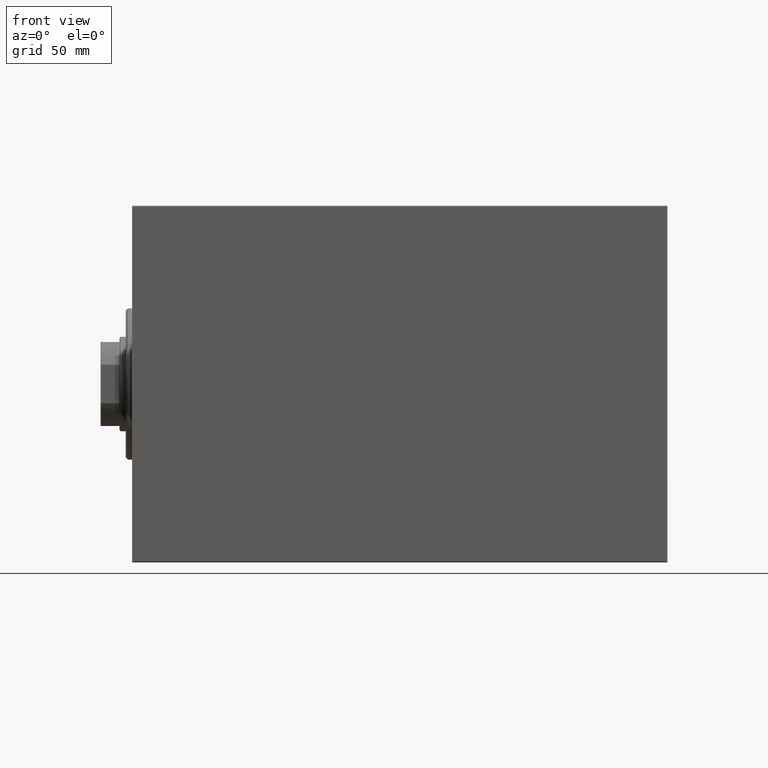
[diagram: clean part render]
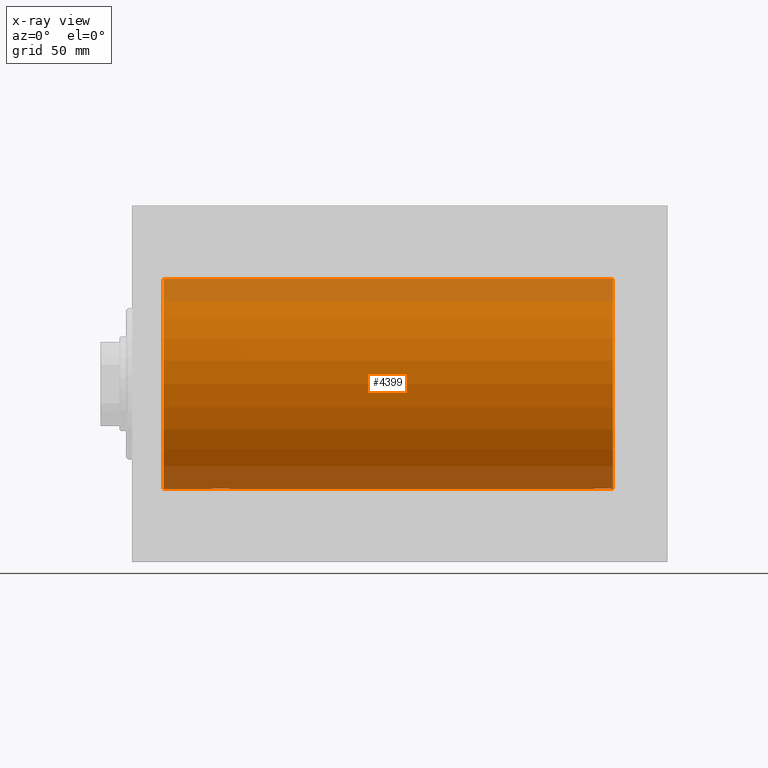
[diagram: x-ray — body ghosted, one internal face saturated and labeled with its STEP entity id]
A machine part, front view, then the same camera in x-ray: the body is ghosted and one INTERNAL B-rep face — a face not visible from any outside direction — is saturated and labeled: STEP entity #4399.
In plain terms, the highlighted cylindrical surface (partial cylindrical patch) has radius 50 mm, axis along (-1, -0, -0).
Its self-contained STEP definition (entity closure, byte-faithful):
#572 = CARTESIAN_POINT ( 'NONE',  ( 44.81153066515419425, -3.199146701881665500, -49.89793607725460589 ) ) ;
#837 = CARTESIAN_POINT ( 'NONE',  ( 221.1930216816069503, -3.203153387937343499, -49.89767833571684008 ) ) ;
#1022 = CARTESIAN_POINT ( 'NONE',  ( 42.28395287026698668, -4.249777379711400016, -49.81906655360198499 ) ) ;
#1059 = CARTESIAN_POINT ( 'NONE',  ( 219.7775736447922270, -0.5587117664567382569, -49.99763378604802710 ) ) ;
#1094 = CARTESIAN_POINT ( 'NONE',  ( 46.25000000000000000, 6.123233970928580774E-15, -50.00000000000000000 ) ) ;
#1530 = VERTEX_POINT ( 'NONE', #33947 ) ;
#1691 = CARTESIAN_POINT ( 'NONE',  ( 38.80078072038718062, -2.811461347331114524, -49.92127983148851200 ) ) ;
#1698 = VERTEX_POINT ( 'NONE', #42709 ) ;
#1971 = CARTESIAN_POINT ( 'NONE',  ( 229.0000000000000000, 0.000000000000000000, 0.000000000000000000 ) ) ;
#2019 = EDGE_CURVE ( 'NONE', #12486, #1530, #31234, .T. ) ;
#2134 = CARTESIAN_POINT ( 'NONE',  ( 38.31397167878049714, -2.133925816755183114, -49.95498245321555686 ) ) ;
#2356 = DIRECTION ( 'NONE',  ( 0.000000000000000000, 0.000000000000000000, 1.000000000000000000 ) ) ;
#2363 = CARTESIAN_POINT ( 'NONE',  ( 39.19302168160691480, -3.203153387937326624, -49.89767833571684008 ) ) ;
#2792 = CARTESIAN_POINT ( 'NONE',  ( 14.99999999999998579, 0.000000000000000000, 0.000000000000000000 ) ) ;
#2974 = EDGE_CURVE ( 'NONE', #19124, #23230, #13324, .T. ) ;
#3959 = CARTESIAN_POINT ( 'NONE',  ( 45.68937155679385143, -2.128188802142360281, -49.95522967821973737 ) ) ;
#4172 = CARTESIAN_POINT ( 'NONE',  ( 43.37333436579037738, -4.031616700143179521, -49.83731072121799599 ) ) ;
#4209 = CARTESIAN_POINT ( 'NONE',  ( 227.6893715567939580, -2.128188802142370495, -49.95522967821975158 ) ) ;
#4399 = ADVANCED_FACE ( 'NONE', ( #11256 ), #11707, .F. ) ;
#4439 = CARTESIAN_POINT ( 'NONE',  ( 220.6248001591803813, -2.597781786597489706, -49.93300953359122474 ) ) ;
#5270 = CARTESIAN_POINT ( 'NONE',  ( 226.5931272088596415, -3.378657745070642981, -49.88595615988430154 ) ) ;
#5491 = CARTESIAN_POINT ( 'NONE',  ( 228.2500000000000568, -0.2773743941468493901, -50.00000000000000711 ) ) ;
#5708 = CARTESIAN_POINT ( 'NONE',  ( 220.8007807203871948, -2.811461347331129179, -49.92127983148851200 ) ) ;
#6190 = AXIS2_PLACEMENT_3D ( 'NONE', #38910, #35981, #35750 ) ;
#6774 = EDGE_LOOP ( 'NONE', ( #29867, #35064, #21231, #27701, #15414, #34446, #32383, #39140 ) ) ;
#7240 = LINE ( 'NONE', #20722, #30974 ) ;
#7325 = CARTESIAN_POINT ( 'NONE',  ( 45.82100581985226029, -1.881229021238118859, -49.96525240872481533 ) ) ;
#7360 = EDGE_CURVE ( 'NONE', #40186, #1698, #12452, .T. ) ;
#7546 = CARTESIAN_POINT ( 'NONE',  ( 44.59312720885954917, -3.378657745070622997, -49.88595615988429444 ) ) ;
#7770 = CARTESIAN_POINT ( 'NONE',  ( 44.13136399446154456, -3.687400765141527259, -49.86408552998295818 ) ) ;
#8041 = CARTESIAN_POINT ( 'NONE',  ( 224.2839528702670293, -4.249777379711429326, -49.81906655360197789 ) ) ;
#8599 = CARTESIAN_POINT ( 'NONE',  ( 37.75000000000000711, -6.867186738287116403E-15, -50.00000000000000000 ) ) ;
#9070 = CARTESIAN_POINT ( 'NONE',  ( 228.2231075279900381, -0.5531336717329033981, -49.99769193709643389 ) ) ;
#9315 = CARTESIAN_POINT ( 'NONE',  ( 40.11782950515556934, -3.820681512513380618, -49.85392475515399724 ) ) ;
#10685 = CARTESIAN_POINT ( 'NONE',  ( 46.22310752799000255, -0.5531336717328981800, -49.99769193709643389 ) ) ;
#11256 = FACE_OUTER_BOUND ( 'NONE', #6774, .T. ) ;
#11580 = DIRECTION ( 'NONE',  ( -1.000000000000000000, -0.000000000000000000, -0.000000000000000000 ) ) ;
#11707 = CYLINDRICAL_SURFACE ( 'NONE', #6190, 50.00000000000000000 ) ;
#12215 = CARTESIAN_POINT ( 'NONE',  ( 219.7500000000000284, -2.307503314381865081E-14, -50.00000000000000000 ) ) ;
#12435 = VERTEX_POINT ( 'NONE', #1094 ) ;
#12452 = B_SPLINE_CURVE_WITH_KNOTS ( 'NONE', 3,
 ( #32661, #5491, #9070, #22570, #38583, #25106, #4209, #38818, #43023, #43255, #5270, #21515, #25929, #36278, #19178, #22785, #8041, #35442, #19405, #21748, #32880, #36489, #18957, #14765, #837, #5708, #4439, #35214, #15583, #33106, #12659, #1059, #28472, #12215 ),
 .UNSPECIFIED., .F., .F.,
 ( 4, 2, 2, 2, 2, 2, 2, 2, 2, 2, 2, 2, 2, 2, 2, 2, 4 ),
 ( 0.01329343152928757002, 0.01412407817529635727, 0.01495472482130514279, 0.01578537146731393004, 0.01661601811332271555, 0.01744666475933150107, 0.01827731140534029006, 0.01910795805134907557, 0.01993860469735786456, 0.02076925134336665008, 0.02159989798937543559, 0.02243054463538422111, 0.02326119128139301009, 0.02409183792740179561, 0.02492248457341058460, 0.02575313121941937011, 0.02658377786542815563 ),
 .UNSPECIFIED. ) ;
#12464 = CARTESIAN_POINT ( 'NONE',  ( 38.18160751012128884, -1.886522330773421574, -49.96505190380066352 ) ) ;
#12486 = VERTEX_POINT ( 'NONE', #35696 ) ;
#12659 = CARTESIAN_POINT ( 'NONE',  ( 219.8875029891967188, -1.108337267831515982, -49.98846998601261760 ) ) ;
#13324 = CIRCLE ( 'NONE', #21226, 50.00000000000000000 ) ;
#13492 = LINE ( 'NONE', #30361, #20287 ) ;
#14278 = LINE ( 'NONE', #17866, #44397 ) ;
#14726 = CARTESIAN_POINT ( 'NONE',  ( 41.72275072962081310, -4.250219976861640880, -49.81902879621016211 ) ) ;
#14765 = CARTESIAN_POINT ( 'NONE',  ( 221.4117978532380562, -3.382416624899818647, -49.88570010427955737 ) ) ;
#15414 = ORIENTED_EDGE ( 'NONE', *, *, #40116, .T. ) ;
#15583 = CARTESIAN_POINT ( 'NONE',  ( 220.1816075101212959, -1.886522330773437339, -49.96505190380065642 ) ) ;
#15607 = CARTESIAN_POINT ( 'NONE',  ( 40.90262382120963736, -4.115209769591108291, -49.83039196709104601 ) ) ;
#15833 = CARTESIAN_POINT ( 'NONE',  ( 40.63289352445426772, -4.033756670430847180, -49.83713703490975888 ) ) ;
#16053 = CARTESIAN_POINT ( 'NONE',  ( 38.62480015918033871, -2.597781786597466613, -49.93300953359121763 ) ) ;
#16414 = DIRECTION ( 'NONE',  ( -1.000000000000000000, -0.000000000000000000, -0.000000000000000000 ) ) ;
#16894 = DIRECTION ( 'NONE',  ( -1.000000000000000000, -0.000000000000000000, -0.000000000000000000 ) ) ;
#17187 = VERTEX_POINT ( 'NONE', #8599 ) ;
#17865 = CARTESIAN_POINT ( 'NONE',  ( 43.88744739392798522, -3.818052230167713113, -49.85412671291930309 ) ) ;
#17866 = CARTESIAN_POINT ( 'NONE',  ( 229.0000000000000000, 0.000000000000000000, 50.00000000000000000 ) ) ;
#18098 = CARTESIAN_POINT ( 'NONE',  ( 42.55997867695647585, -4.222042462213118519, -49.82145436824654894 ) ) ;
#18595 = DIRECTION ( 'NONE',  ( -1.000000000000000000, 0.000000000000000000, 0.000000000000000000 ) ) ;
#18957 = CARTESIAN_POINT ( 'NONE',  ( 221.8736835512492576, -3.690299572754756952, -49.86386974736159061 ) ) ;
#19124 = VERTEX_POINT ( 'NONE', #24157 ) ;
#19178 = CARTESIAN_POINT ( 'NONE',  ( 225.1032329603422113, -4.113647494206503552, -49.83052139214891696 ) ) ;
#19405 = CARTESIAN_POINT ( 'NONE',  ( 223.4459143511985246, -4.222816005855230870, -49.82138837911247009 ) ) ;
#19421 = DIRECTION ( 'NONE',  ( -1.000000000000000000, 0.000000000000000000, 0.000000000000000000 ) ) ;
#19431 = CARTESIAN_POINT ( 'NONE',  ( 37.96920203844657493, -1.375411031076047230, -49.98173289062308555 ) ) ;
#20287 = VECTOR ( 'NONE', #16414, 1000.000000000000000 ) ;
#20542 = EDGE_CURVE ( 'NONE', #1698, #12435, #43636, .T. ) ;
#20722 = CARTESIAN_POINT ( 'NONE',  ( 229.0000000000000000, 6.123233995736764507E-15, -50.00000000000000000 ) ) ;
#21226 = AXIS2_PLACEMENT_3D ( 'NONE', #1971, #18595, #35235 ) ;
#21231 = ORIENTED_EDGE ( 'NONE', *, *, #7360, .T. ) ;
#21475 = CARTESIAN_POINT ( 'NONE',  ( 43.10323296034216156, -4.113647494206477795, -49.83052139214893117 ) ) ;
#21515 = CARTESIAN_POINT ( 'NONE',  ( 226.1313639944615659, -3.687400765141549019, -49.86408552998298660 ) ) ;
#21748 = CARTESIAN_POINT ( 'NONE',  ( 222.9026238212096587, -4.115209769591131383, -49.83039196709102470 ) ) ;
#22369 = CARTESIAN_POINT ( 'NONE',  ( 37.77757364479218438, -0.5587117664567184949, -49.99763378604801289 ) ) ;
#22570 = CARTESIAN_POINT ( 'NONE',  ( 228.1143191330600359, -1.101350136471743069, -49.98862054280448319 ) ) ;
#22733 = DIRECTION ( 'NONE',  ( -1.000000000000000000, -0.000000000000000000, -0.000000000000000000 ) ) ;
#22785 = CARTESIAN_POINT ( 'NONE',  ( 224.5599786769565469, -4.222042462213146941, -49.82145436824653473 ) ) ;
#22985 = EDGE_CURVE ( 'NONE', #17187, #12486, #7240, .T. ) ;
#23230 = VERTEX_POINT ( 'NONE', #43196 ) ;
#24157 = CARTESIAN_POINT ( 'NONE',  ( 229.0000000000000000, 6.123233995736764507E-15, -50.00000000000000000 ) ) ;
#24408 = CARTESIAN_POINT ( 'NONE',  ( 46.03272642097309841, -1.369753890039645761, -49.98188917176552337 ) ) ;
#24844 = CARTESIAN_POINT ( 'NONE',  ( 45.37881717263736192, -2.593114840406123722, -49.93325460257639037 ) ) ;
#25106 = CARTESIAN_POINT ( 'NONE',  ( 227.8210058198523598, -1.881229021238126409, -49.96525240872482954 ) ) ;
#25174 = VECTOR ( 'NONE', #22733, 1000.000000000000000 ) ;
#25929 = CARTESIAN_POINT ( 'NONE',  ( 225.8874473939280563, -3.818052230167736205, -49.85412671291930309 ) ) ;
#26276 = EDGE_CURVE ( 'NONE', #19124, #40186, #13492, .T. ) ;
#26394 = CARTESIAN_POINT ( 'NONE',  ( 37.75000000000000711, -6.867186738287116403E-15, -50.00000000000000000 ) ) ;
#27701 = ORIENTED_EDGE ( 'NONE', *, *, #20542, .T. ) ;
#28434 = CARTESIAN_POINT ( 'NONE',  ( 41.44591435119853173, -4.222816005855205113, -49.82138837911246299 ) ) ;
#28472 = CARTESIAN_POINT ( 'NONE',  ( 219.7500000000000853, -0.2808785465865917264, -50.00000000000001421 ) ) ;
#29699 = CARTESIAN_POINT ( 'NONE',  ( 229.0000000000000000, 6.123233995736764507E-15, -50.00000000000000000 ) ) ;
#29769 = CARTESIAN_POINT ( 'NONE',  ( 39.41179785323800644, -3.382416624899780899, -49.88570010427955737 ) ) ;
#29867 = ORIENTED_EDGE ( 'NONE', *, *, #2974, .F. ) ;
#30361 = CARTESIAN_POINT ( 'NONE',  ( 229.0000000000000000, 6.123233995736764507E-15, -50.00000000000000000 ) ) ;
#30974 = VECTOR ( 'NONE', #16894, 1000.000000000000000 ) ;
#31234 = CIRCLE ( 'NONE', #34115, 50.00000000000000000 ) ;
#31360 = CARTESIAN_POINT ( 'NONE',  ( 45.20303561951989479, -2.807099414226270628, -49.92152599098506016 ) ) ;
#31513 = B_SPLINE_CURVE_WITH_KNOTS ( 'NONE', 3,
 ( #35175, #41488, #10685, #38325, #24408, #7325, #3959, #24844, #31360, #572, #7546, #7770, #17865, #4172, #21475, #18098, #1022, #14726, #28434, #15607, #15833, #9315, #32682, #29769, #2363, #1691, #16053, #2134, #12464, #19431, #43494, #22369, #32239, #26394 ),
 .UNSPECIFIED., .F., .F.,
 ( 4, 2, 2, 2, 2, 2, 2, 2, 2, 2, 2, 2, 2, 2, 2, 2, 4 ),
 ( 0.01329343152928757002, 0.01412407817529635554, 0.01495472482130513932, 0.01578537146731392310, 0.01661601811332270862, 0.01744666475933149413, 0.01827731140534027965, 0.01910795805134906516, 0.01993860469735784721, 0.02076925134336663273, 0.02159989798937541824, 0.02243054463538420029, 0.02326119128139298581, 0.02409183792740176785, 0.02492248457341054990, 0.02575313121941933542, 0.02658377786542811747 ),
 .UNSPECIFIED. ) ;
#32021 = EDGE_CURVE ( 'NONE', #23230, #1530, #14278, .T. ) ;
#32239 = CARTESIAN_POINT ( 'NONE',  ( 37.75000000000000711, -0.2808785465865692443, -50.00000000000001421 ) ) ;
#32383 = ORIENTED_EDGE ( 'NONE', *, *, #2019, .T. ) ;
#32661 = CARTESIAN_POINT ( 'NONE',  ( 228.2500000000000284, 6.123233970934102801E-15, -50.00000000000000000 ) ) ;
#32682 = CARTESIAN_POINT ( 'NONE',  ( 39.87368355124921493, -3.690299572754719648, -49.86386974736159061 ) ) ;
#32880 = CARTESIAN_POINT ( 'NONE',  ( 222.6328935244542890, -4.033756670430873825, -49.83713703490974467 ) ) ;
#33106 = CARTESIAN_POINT ( 'NONE',  ( 219.9692020384465820, -1.375411031076060331, -49.98173289062309976 ) ) ;
#33947 = CARTESIAN_POINT ( 'NONE',  ( 14.99999999999998579, 0.000000000000000000, 50.00000000000000000 ) ) ;
#34115 = AXIS2_PLACEMENT_3D ( 'NONE', #2792, #19421, #2356 ) ;
#34446 = ORIENTED_EDGE ( 'NONE', *, *, #22985, .T. ) ;
#35064 = ORIENTED_EDGE ( 'NONE', *, *, #26276, .T. ) ;
#35175 = CARTESIAN_POINT ( 'NONE',  ( 46.25000000000000000, 6.123233970928580774E-15, -50.00000000000000000 ) ) ;
#35214 = CARTESIAN_POINT ( 'NONE',  ( 220.3139716787804332, -2.133925816755204874, -49.95498245321555686 ) ) ;
#35235 = DIRECTION ( 'NONE',  ( 0.000000000000000000, 0.000000000000000000, 1.000000000000000000 ) ) ;
#35442 = CARTESIAN_POINT ( 'NONE',  ( 223.7227507296208842, -4.250219976861668414, -49.81902879621013369 ) ) ;
#35696 = CARTESIAN_POINT ( 'NONE',  ( 14.99999999999998579, 6.123233995736764507E-15, -50.00000000000000000 ) ) ;
#35750 = DIRECTION ( 'NONE',  ( 0.000000000000000000, 0.000000000000000000, 1.000000000000000000 ) ) ;
#35981 = DIRECTION ( 'NONE',  ( -1.000000000000000000, -0.000000000000000000, -0.000000000000000000 ) ) ;
#36278 = CARTESIAN_POINT ( 'NONE',  ( 225.3733343657904697, -4.031616700143205279, -49.83731072121799599 ) ) ;
#36489 = CARTESIAN_POINT ( 'NONE',  ( 222.1178295051556120, -3.820681512513405931, -49.85392475515401145 ) ) ;
#38325 = CARTESIAN_POINT ( 'NONE',  ( 46.11431913306008568, -1.101350136471737295, -49.98862054280449030 ) ) ;
#38583 = CARTESIAN_POINT ( 'NONE',  ( 228.0327264209731766, -1.369753890039650646, -49.98188917176553048 ) ) ;
#38818 = CARTESIAN_POINT ( 'NONE',  ( 227.3788171726373264, -2.593114840406136157, -49.93325460257641879 ) ) ;
#38910 = CARTESIAN_POINT ( 'NONE',  ( 229.0000000000000000, 0.000000000000000000, 0.000000000000000000 ) ) ;
#39140 = ORIENTED_EDGE ( 'NONE', *, *, #32021, .F. ) ;
#40116 = EDGE_CURVE ( 'NONE', #12435, #17187, #31513, .T. ) ;
#40186 = VERTEX_POINT ( 'NONE', #43045 ) ;
#41488 = CARTESIAN_POINT ( 'NONE',  ( 46.25000000000001421, -0.2773743941468467811, -50.00000000000002132 ) ) ;
#42709 = CARTESIAN_POINT ( 'NONE',  ( 219.7500000000000284, -2.307503314381865081E-14, -50.00000000000000000 ) ) ;
#43023 = CARTESIAN_POINT ( 'NONE',  ( 227.2030356195199658, -2.807099414226289280, -49.92152599098506727 ) ) ;
#43045 = CARTESIAN_POINT ( 'NONE',  ( 228.2500000000000284, 6.123233970934102801E-15, -50.00000000000000000 ) ) ;
#43196 = CARTESIAN_POINT ( 'NONE',  ( 229.0000000000000000, 0.000000000000000000, 50.00000000000000000 ) ) ;
#43255 = CARTESIAN_POINT ( 'NONE',  ( 226.8115306651542085, -3.199146701881684596, -49.89793607725460589 ) ) ;
#43494 = CARTESIAN_POINT ( 'NONE',  ( 37.88750298919665482, -1.108337267831493556, -49.98846998601261760 ) ) ;
#43636 = LINE ( 'NONE', #29699, #25174 ) ;
#44397 = VECTOR ( 'NONE', #11580, 1000.000000000000000 ) ;